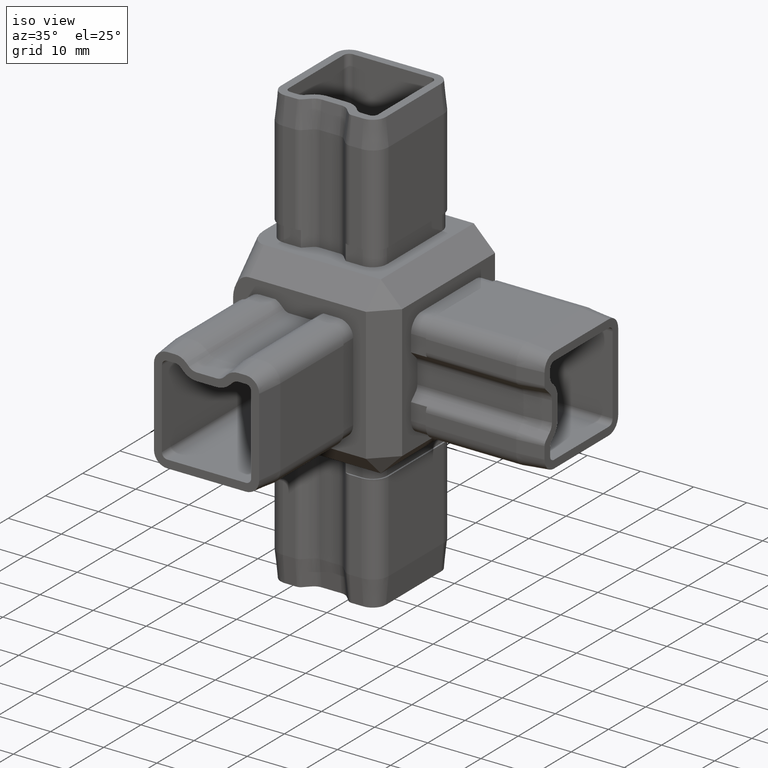
[diagram: clean part render]
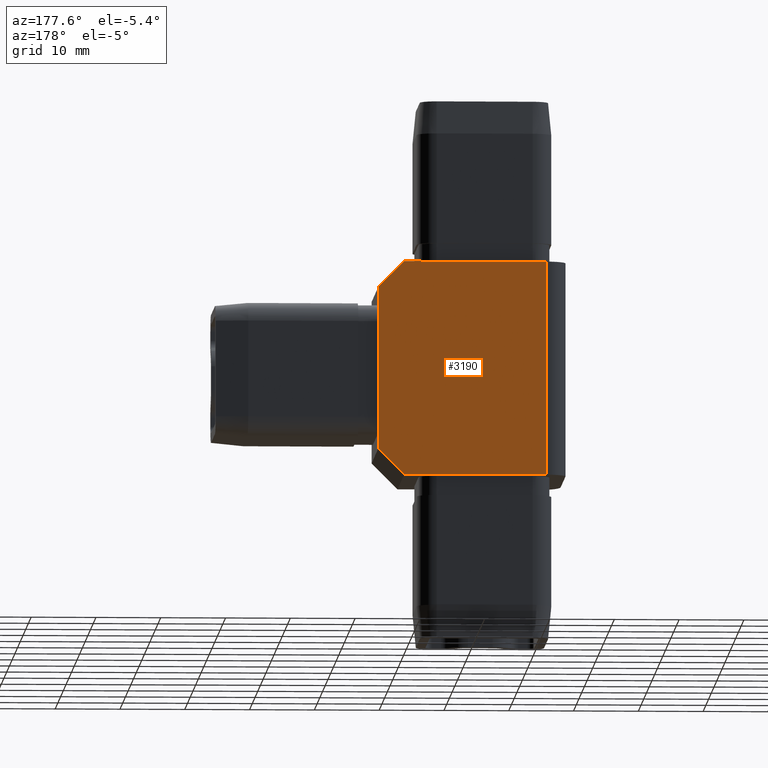
[diagram: tour spotlight — one face highlighted and labeled with its STEP entity id]
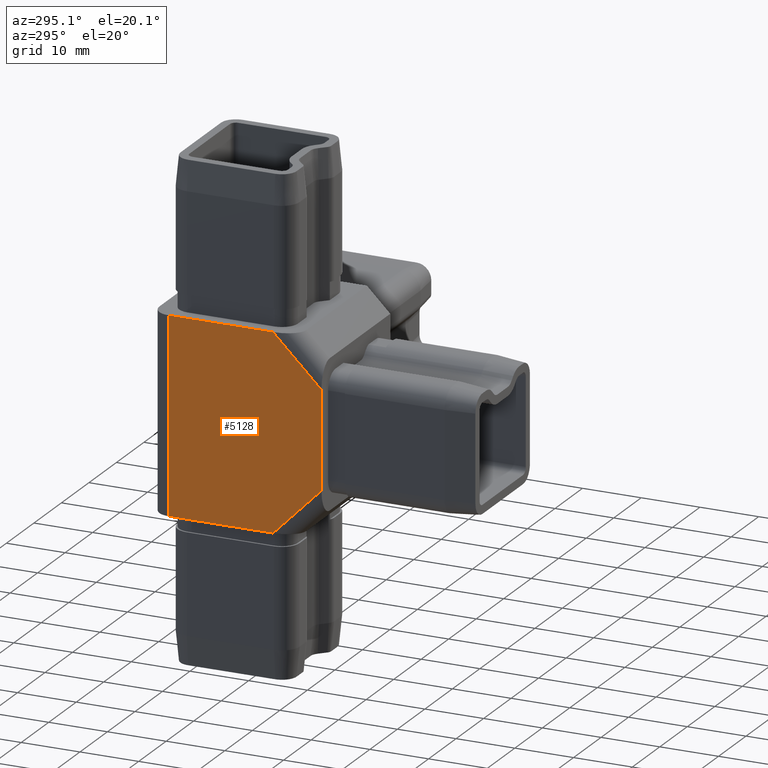
[diagram: tour spotlight — one face highlighted and labeled with its STEP entity id]
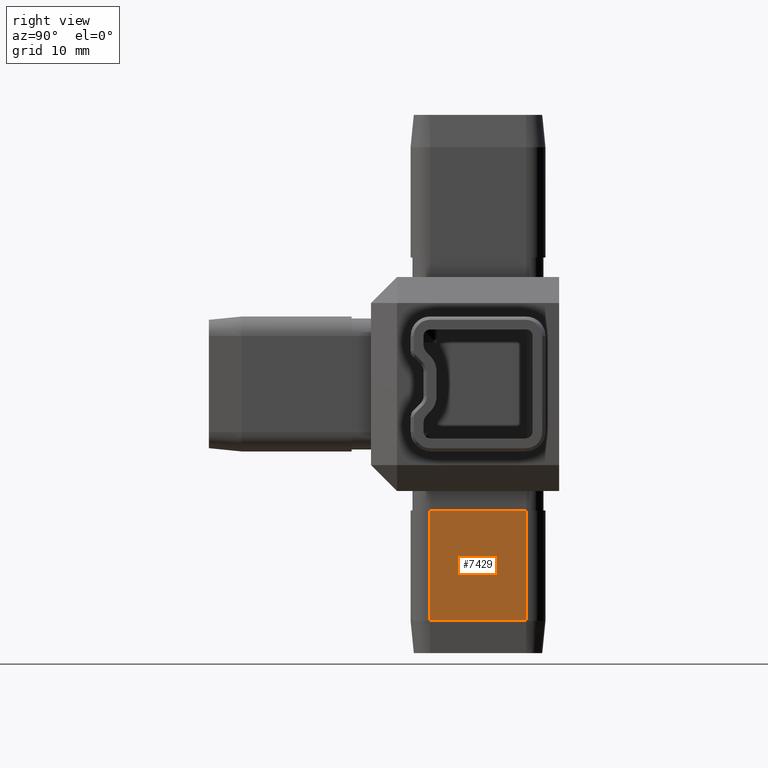
[diagram: tour spotlight — one face highlighted and labeled with its STEP entity id]
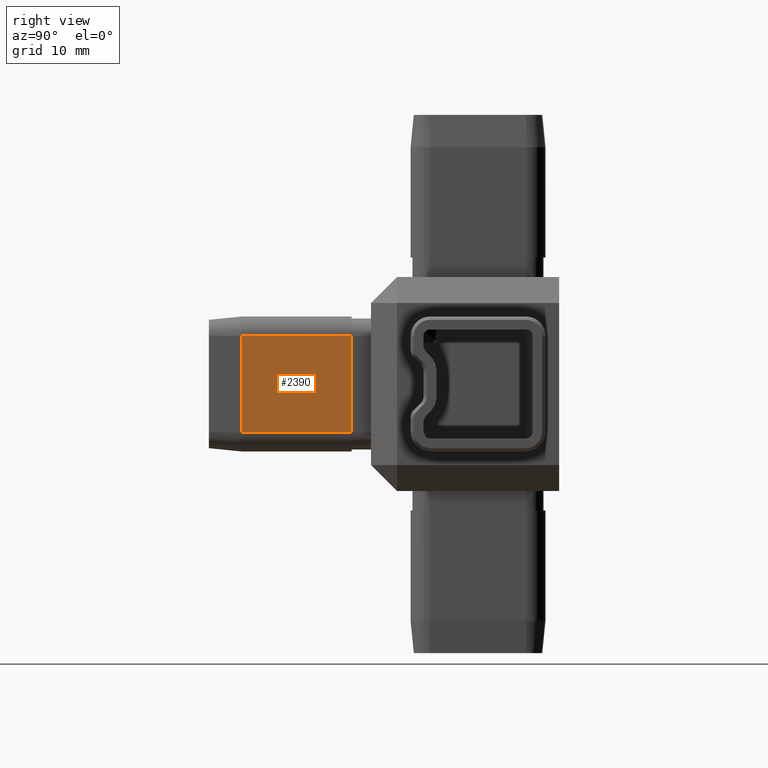
[diagram: tour spotlight — one face highlighted and labeled with its STEP entity id]
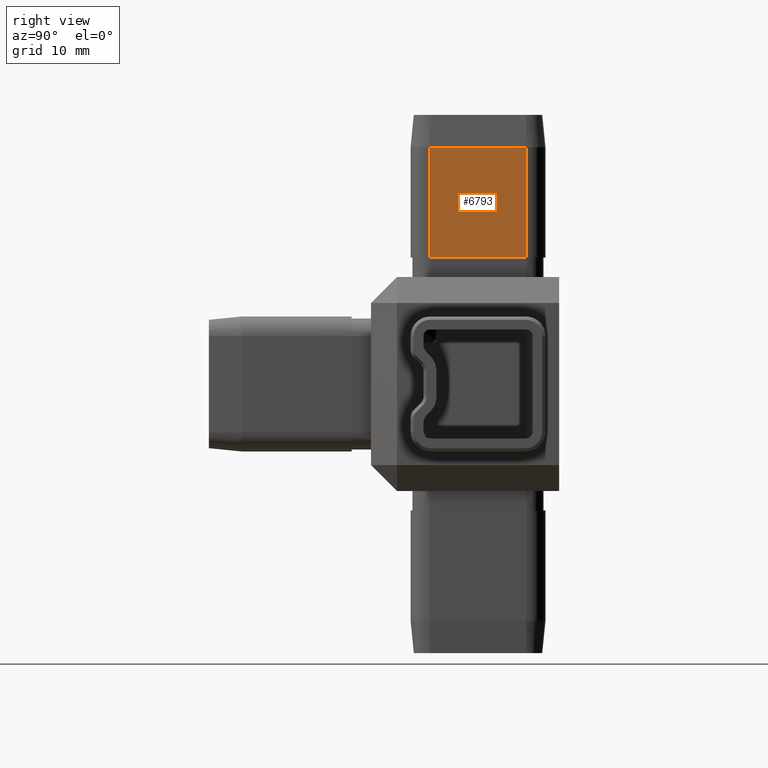
[diagram: tour spotlight — one face highlighted and labeled with its STEP entity id]
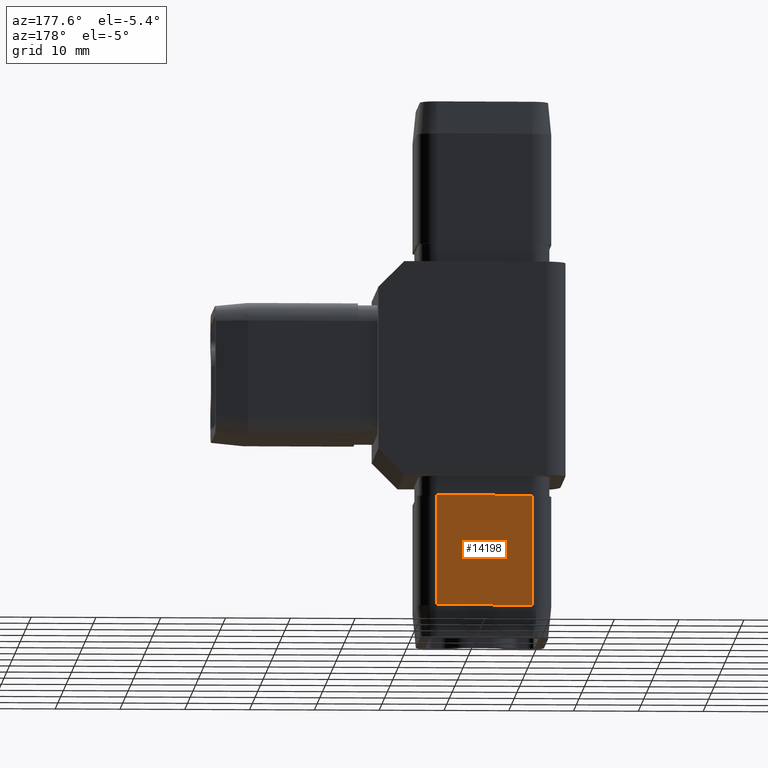
[diagram: tour spotlight — one face highlighted and labeled with its STEP entity id]
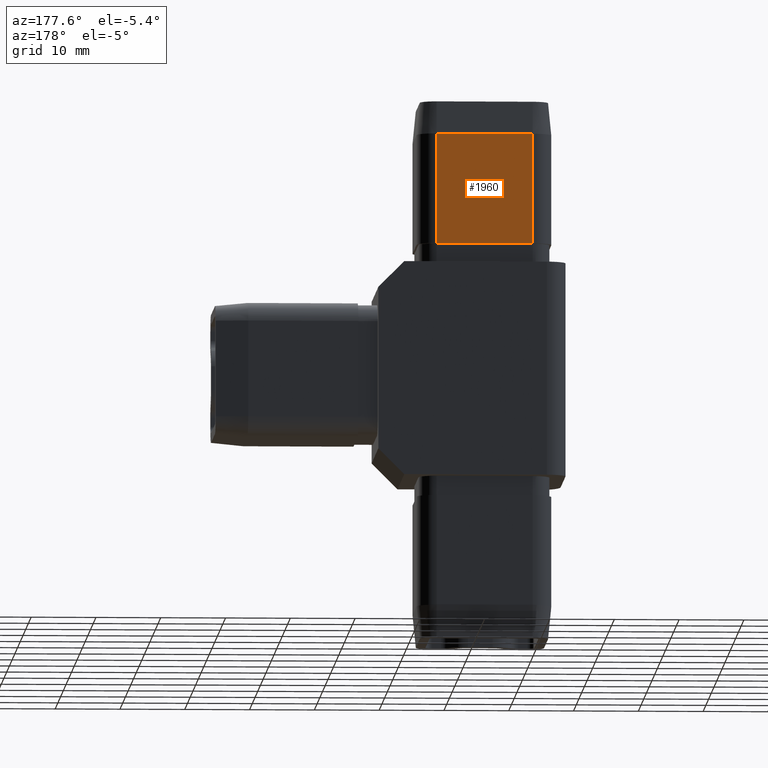
[diagram: tour spotlight — one face highlighted and labeled with its STEP entity id]
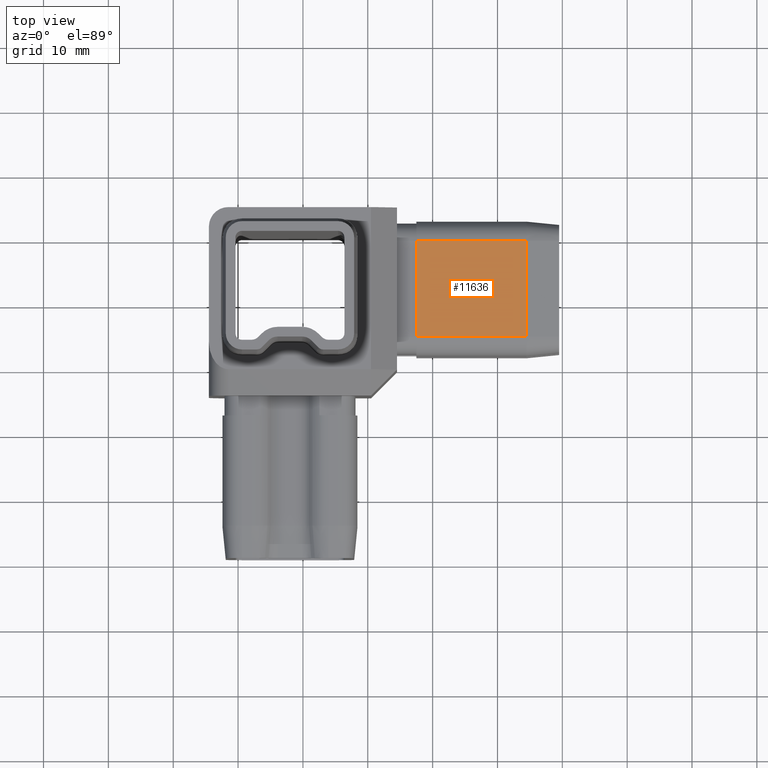
[diagram: tour spotlight — one face highlighted and labeled with its STEP entity id]
A machine part: a face-by-face anatomy tour. The part has 501 B-rep faces; the first image is the clean iso view, then the 8 largest visible faces are spotlighted one at a time (largest first), each with its STEP entity span.

Face 1 — auxiliary view, entity #3190. In plain terms, the highlighted planar face has unit normal (0, -1, 0).
Definition (entity closure, byte-faithful):
#160 = ORIENTED_EDGE ( 'NONE', *, *, #7192, .T. ) ;
#200 = DIRECTION ( 'NONE',  ( -1.000000000000000000, -0.0000000000000000000, -0.0000000000000000000 ) ) ;
#285 = VECTOR ( 'NONE', #200, 1000.000000000000000 ) ;
#605 = CARTESIAN_POINT ( 'NONE',  ( 10.50000000000000500, 14.50000000000000200, 16.50000000000000000 ) ) ;
#868 = ORIENTED_EDGE ( 'NONE', *, *, #3632, .T. ) ;
#1194 = CARTESIAN_POINT ( 'NONE',  ( 10.49999999999997900, 14.50000000000000200, -16.50000000000000000 ) ) ;
#1596 = DIRECTION ( 'NONE',  ( -1.000000000000000000, -0.0000000000000000000, -0.0000000000000000000 ) ) ;
#1776 = CARTESIAN_POINT ( 'NONE',  ( -14.50000000000000500, 14.50000000000000200, 16.50000000000000000 ) ) ;
#1796 = DIRECTION ( 'NONE',  ( -0.7071067811865493500, -0.0000000000000000000, -0.7071067811865456900 ) ) ;
#2071 = DIRECTION ( 'NONE',  ( 0.7071067811865456900, 0.0000000000000000000, -0.7071067811865493500 ) ) ;
#2778 = EDGE_CURVE ( 'NONE', #6378, #6510, #16791, .T. ) ;
#2913 = CARTESIAN_POINT ( 'NONE',  ( 14.49999999999999500, 14.50000000000000200, 16.50000000000000000 ) ) ;
#3111 = LINE ( 'NONE', #13980, #3579 ) ;
#3138 = DIRECTION ( 'NONE',  ( 0.0000000000000000000, -0.0000000000000000000, -1.000000000000000000 ) ) ;
#3190 = ADVANCED_FACE ( 'NONE', ( #17285 ), #6436, .F. ) ;
#3216 = DIRECTION ( 'NONE',  ( 0.0000000000000000000, -1.000000000000000000, 0.0000000000000000000 ) ) ;
#3579 = VECTOR ( 'NONE', #6155, 1000.000000000000000 ) ;
#3632 = EDGE_CURVE ( 'NONE', #9524, #4042, #7613, .T. ) ;
#4042 = VERTEX_POINT ( 'NONE', #1194 ) ;
#4903 = ORIENTED_EDGE ( 'NONE', *, *, #10500, .T. ) ;
#6080 = DIRECTION ( 'NONE',  ( -0.0000000000000000000, -0.0000000000000000000, -1.000000000000000000 ) ) ;
#6155 = DIRECTION ( 'NONE',  ( -0.0000000000000000000, -0.0000000000000000000, 1.000000000000000000 ) ) ;
#6163 = LINE ( 'NONE', #605, #16498 ) ;
#6378 = VERTEX_POINT ( 'NONE', #8794 ) ;
#6436 = PLANE ( 'NONE',  #13334 ) ;
#6510 = VERTEX_POINT ( 'NONE', #17307 ) ;
#7192 = EDGE_CURVE ( 'NONE', #6378, #18020, #6163, .T. ) ;
#7613 = LINE ( 'NONE', #11124, #16283 ) ;
#7768 = CARTESIAN_POINT ( 'NONE',  ( 14.49999999999999500, 14.50000000000000200, 12.49999999999999100 ) ) ;
#8553 = LINE ( 'NONE', #18634, #285 ) ;
#8794 = CARTESIAN_POINT ( 'NONE',  ( 10.50000000000000900, 14.50000000000000200, 16.50000000000000000 ) ) ;
#9368 = CARTESIAN_POINT ( 'NONE',  ( 14.49999999999999500, 14.50000000000000200, -12.50000000000001100 ) ) ;
#9524 = VERTEX_POINT ( 'NONE', #9368 ) ;
#10500 = EDGE_CURVE ( 'NONE', #15370, #6510, #3111, .T. ) ;
#10534 = EDGE_CURVE ( 'NONE', #18020, #9524, #17639, .T. ) ;
#10919 = CARTESIAN_POINT ( 'NONE',  ( -14.50000000000000500, 14.50000000000000200, 16.50000000000000000 ) ) ;
#11124 = CARTESIAN_POINT ( 'NONE',  ( 14.49999999999999500, 14.50000000000000200, -12.50000000000001100 ) ) ;
#11500 = ORIENTED_EDGE ( 'NONE', *, *, #2778, .F. ) ;
#11804 = CARTESIAN_POINT ( 'NONE',  ( -11.50000000000000700, 14.50000000000000200, -16.50000000000000000 ) ) ;
#13334 = AXIS2_PLACEMENT_3D ( 'NONE', #1776, #3216, #3138 ) ;
#13980 = CARTESIAN_POINT ( 'NONE',  ( -11.50000000000000700, 14.50000000000000200, 16.50000000000000000 ) ) ;
#14652 = EDGE_LOOP ( 'NONE', ( #17077, #4903, #11500, #160, #15498, #868 ) ) ;
#15370 = VERTEX_POINT ( 'NONE', #11804 ) ;
#15498 = ORIENTED_EDGE ( 'NONE', *, *, #10534, .T. ) ;
#16283 = VECTOR ( 'NONE', #1796, 1000.000000000000000 ) ;
#16498 = VECTOR ( 'NONE', #2071, 1000.000000000000000 ) ;
#16786 = EDGE_CURVE ( 'NONE', #4042, #15370, #8553, .T. ) ;
#16791 = LINE ( 'NONE', #10919, #17769 ) ;
#17077 = ORIENTED_EDGE ( 'NONE', *, *, #16786, .T. ) ;
#17285 = FACE_OUTER_BOUND ( 'NONE', #14652, .T. ) ;
#17307 = CARTESIAN_POINT ( 'NONE',  ( -11.50000000000000700, 14.50000000000000200, 16.50000000000000000 ) ) ;
#17639 = LINE ( 'NONE', #2913, #19112 ) ;
#17769 = VECTOR ( 'NONE', #1596, 1000.000000000000000 ) ;
#18020 = VERTEX_POINT ( 'NONE', #7768 ) ;
#18634 = CARTESIAN_POINT ( 'NONE',  ( -14.50000000000000500, 14.50000000000000200, -16.50000000000000000 ) ) ;
#19112 = VECTOR ( 'NONE', #6080, 1000.000000000000000 ) ;

Face 2 — auxiliary view, entity #5128. In plain terms, the highlighted planar face has unit normal (1, 0, -0).
Definition (entity closure, byte-faithful):
#67 = CARTESIAN_POINT ( 'NONE',  ( -14.50000000000000200, -12.37867965644036300, -10.37867965644035100 ) ) ;
#997 = EDGE_LOOP ( 'NONE', ( #14913, #8483, #12689, #15506, #10136, #1364 ) ) ;
#1364 = ORIENTED_EDGE ( 'NONE', *, *, #15745, .T. ) ;
#1677 = DIRECTION ( 'NONE',  ( 8.459549885149626700E-017, -0.7071067811865455700, 0.7071067811865494600 ) ) ;
#1724 = CARTESIAN_POINT ( 'NONE',  ( -14.50000000000000200, -14.49999999999999800, 8.257359312880693000 ) ) ;
#1938 = VECTOR ( 'NONE', #14617, 1000.000000000000000 ) ;
#2260 = LINE ( 'NONE', #2945, #6455 ) ;
#2488 = DIRECTION ( 'NONE',  ( 1.000000000000000000, 1.196361017915039500E-016, -0.0000000000000000000 ) ) ;
#2527 = AXIS2_PLACEMENT_3D ( 'NONE', #10371, #2488, #18073 ) ;
#2630 = LINE ( 'NONE', #10540, #15515 ) ;
#2945 = CARTESIAN_POINT ( 'NONE',  ( -14.50000000000000500, 11.50000000000000400, 16.50000000000000000 ) ) ;
#4040 = LINE ( 'NONE', #67, #16906 ) ;
#4091 = VECTOR ( 'NONE', #19396, 1000.000000000000000 ) ;
#5128 = ADVANCED_FACE ( 'NONE', ( #16981 ), #10306, .F. ) ;
#5662 = EDGE_CURVE ( 'NONE', #11782, #14650, #2630, .T. ) ;
#6455 = VECTOR ( 'NONE', #12396, 1000.000000000000000 ) ;
#8066 = VERTEX_POINT ( 'NONE', #16699 ) ;
#8425 = DIRECTION ( 'NONE',  ( -8.459549885149626700E-017, 0.7071067811865455700, 0.7071067811865494600 ) ) ;
#8483 = ORIENTED_EDGE ( 'NONE', *, *, #14031, .T. ) ;
#9016 = EDGE_CURVE ( 'NONE', #8066, #12331, #16715, .T. ) ;
#9038 = CARTESIAN_POINT ( 'NONE',  ( -14.50000000000000200, -14.49999999999999800, -8.257359312880705500 ) ) ;
#9252 = LINE ( 'NONE', #14238, #1938 ) ;
#10136 = ORIENTED_EDGE ( 'NONE', *, *, #5662, .F. ) ;
#10306 = PLANE ( 'NONE',  #2527 ) ;
#10371 = CARTESIAN_POINT ( 'NONE',  ( -14.50000000000000500, 14.50000000000000200, 16.50000000000000000 ) ) ;
#10540 = CARTESIAN_POINT ( 'NONE',  ( -14.50000000000000200, -14.49999999999999800, 16.50000000000000000 ) ) ;
#11120 = EDGE_CURVE ( 'NONE', #12807, #14650, #4040, .T. ) ;
#11349 = CARTESIAN_POINT ( 'NONE',  ( -14.50000000000000400, -6.257359312880728600, 16.50000000000000000 ) ) ;
#11782 = VERTEX_POINT ( 'NONE', #1724 ) ;
#12331 = VERTEX_POINT ( 'NONE', #11349 ) ;
#12352 = VERTEX_POINT ( 'NONE', #17936 ) ;
#12396 = DIRECTION ( 'NONE',  ( 0.0000000000000000000, 0.0000000000000000000, -1.000000000000000000 ) ) ;
#12689 = ORIENTED_EDGE ( 'NONE', *, *, #18936, .T. ) ;
#12807 = VERTEX_POINT ( 'NONE', #13111 ) ;
#12994 = CARTESIAN_POINT ( 'NONE',  ( -14.50000000000000200, -8.378679656440358100, 14.37867965644036700 ) ) ;
#13111 = CARTESIAN_POINT ( 'NONE',  ( -14.50000000000000400, -6.257359312880742800, -16.50000000000000000 ) ) ;
#13637 = DIRECTION ( 'NONE',  ( -0.0000000000000000000, -0.0000000000000000000, -1.000000000000000000 ) ) ;
#14031 = EDGE_CURVE ( 'NONE', #8066, #12352, #2260, .T. ) ;
#14238 = CARTESIAN_POINT ( 'NONE',  ( -14.50000000000000500, 14.50000000000000200, -16.50000000000000000 ) ) ;
#14617 = DIRECTION ( 'NONE',  ( 1.196361017915039500E-016, -1.000000000000000000, 0.0000000000000000000 ) ) ;
#14650 = VERTEX_POINT ( 'NONE', #9038 ) ;
#14724 = CARTESIAN_POINT ( 'NONE',  ( -14.50000000000000500, 14.50000000000000200, 16.50000000000000000 ) ) ;
#14913 = ORIENTED_EDGE ( 'NONE', *, *, #9016, .F. ) ;
#15506 = ORIENTED_EDGE ( 'NONE', *, *, #11120, .T. ) ;
#15515 = VECTOR ( 'NONE', #13637, 1000.000000000000000 ) ;
#15745 = EDGE_CURVE ( 'NONE', #11782, #12331, #18225, .T. ) ;
#16699 = CARTESIAN_POINT ( 'NONE',  ( -14.50000000000000500, 11.50000000000000400, 16.50000000000000000 ) ) ;
#16715 = LINE ( 'NONE', #14724, #4091 ) ;
#16906 = VECTOR ( 'NONE', #1677, 1000.000000000000200 ) ;
#16981 = FACE_OUTER_BOUND ( 'NONE', #997, .T. ) ;
#17032 = VECTOR ( 'NONE', #8425, 1000.000000000000200 ) ;
#17936 = CARTESIAN_POINT ( 'NONE',  ( -14.50000000000000500, 11.50000000000000400, -16.50000000000000000 ) ) ;
#18073 = DIRECTION ( 'NONE',  ( -1.196361017915039500E-016, 1.000000000000000000, 0.0000000000000000000 ) ) ;
#18225 = LINE ( 'NONE', #12994, #17032 ) ;
#18936 = EDGE_CURVE ( 'NONE', #12352, #12807, #9252, .T. ) ;
#19396 = DIRECTION ( 'NONE',  ( 1.196361017915039500E-016, -1.000000000000000000, 0.0000000000000000000 ) ) ;

Face 3 — right view, entity #7429. In plain terms, the highlighted planar face has unit normal (1, -0, 0).
Definition (entity closure, byte-faithful):
#9 = VERTEX_POINT ( 'NONE', #15361 ) ;
#125 = EDGE_CURVE ( 'NONE', #8343, #8230, #2973, .T. ) ;
#184 = AXIS2_PLACEMENT_3D ( 'NONE', #19506, #2555, #5713 ) ;
#942 = CARTESIAN_POINT ( 'NONE',  ( 8.400000000000007500, -5.399999999999998600, -19.50000000000000000 ) ) ;
#1403 = ORIENTED_EDGE ( 'NONE', *, *, #11835, .T. ) ;
#2035 = CARTESIAN_POINT ( 'NONE',  ( 8.400000000000007500, 9.400000000000002100, -19.50000000000000000 ) ) ;
#2480 = ORIENTED_EDGE ( 'NONE', *, *, #125, .F. ) ;
#2555 = DIRECTION ( 'NONE',  ( 1.000000000000000000, -1.172110456741085800E-016, 0.0000000000000000000 ) ) ;
#2973 = LINE ( 'NONE', #4302, #18980 ) ;
#4302 = CARTESIAN_POINT ( 'NONE',  ( 8.400000000000005700, -5.399999999999998600, -41.50000000000000000 ) ) ;
#4582 = CARTESIAN_POINT ( 'NONE',  ( 8.400000000000007500, 9.400000000000002100, -36.50000000000001400 ) ) ;
#5450 = PLANE ( 'NONE',  #184 ) ;
#5713 = DIRECTION ( 'NONE',  ( 1.172110456741085800E-016, 1.000000000000000000, 0.0000000000000000000 ) ) ;
#5732 = EDGE_CURVE ( 'NONE', #8704, #8343, #15767, .T. ) ;
#6039 = DIRECTION ( 'NONE',  ( -0.0000000000000000000, -0.0000000000000000000, 1.000000000000000000 ) ) ;
#6259 = CARTESIAN_POINT ( 'NONE',  ( 8.400000000000007500, 9.400000000000002100, -36.50000000000001400 ) ) ;
#6438 = DIRECTION ( 'NONE',  ( 0.0000000000000000000, -1.000000000000000000, 0.0000000000000000000 ) ) ;
#7044 = DIRECTION ( 'NONE',  ( -0.0000000000000000000, -0.0000000000000000000, 1.000000000000000000 ) ) ;
#7429 = ADVANCED_FACE ( 'NONE', ( #8577 ), #5450, .T. ) ;
#7974 = VECTOR ( 'NONE', #8335, 1000.000000000000000 ) ;
#8230 = VERTEX_POINT ( 'NONE', #942 ) ;
#8247 = ORIENTED_EDGE ( 'NONE', *, *, #8955, .T. ) ;
#8335 = DIRECTION ( 'NONE',  ( 0.0000000000000000000, -1.000000000000000000, 0.0000000000000000000 ) ) ;
#8343 = VERTEX_POINT ( 'NONE', #13742 ) ;
#8577 = FACE_OUTER_BOUND ( 'NONE', #13511, .T. ) ;
#8600 = CARTESIAN_POINT ( 'NONE',  ( 8.400000000000007500, 9.400000000000002100, -41.50000000000000000 ) ) ;
#8704 = VERTEX_POINT ( 'NONE', #6259 ) ;
#8955 = EDGE_CURVE ( 'NONE', #8704, #9, #15035, .T. ) ;
#10684 = VECTOR ( 'NONE', #6438, 1000.000000000000000 ) ;
#11288 = ORIENTED_EDGE ( 'NONE', *, *, #5732, .F. ) ;
#11835 = EDGE_CURVE ( 'NONE', #9, #8230, #18606, .T. ) ;
#13511 = EDGE_LOOP ( 'NONE', ( #2480, #11288, #8247, #1403 ) ) ;
#13742 = CARTESIAN_POINT ( 'NONE',  ( 8.400000000000007500, -5.399999999999998600, -36.50000000000001400 ) ) ;
#14556 = VECTOR ( 'NONE', #7044, 1000.000000000000000 ) ;
#15035 = LINE ( 'NONE', #8600, #14556 ) ;
#15361 = CARTESIAN_POINT ( 'NONE',  ( 8.400000000000007500, 9.400000000000002100, -19.50000000000000000 ) ) ;
#15767 = LINE ( 'NONE', #4582, #10684 ) ;
#18606 = LINE ( 'NONE', #2035, #7974 ) ;
#18980 = VECTOR ( 'NONE', #6039, 1000.000000000000000 ) ;
#19506 = CARTESIAN_POINT ( 'NONE',  ( 8.400000000000007500, 9.400000000000002100, -41.50000000000000000 ) ) ;

Face 4 — right view, entity #2390. In plain terms, the highlighted planar face has unit normal (-1, 0, -0).
Definition (entity closure, byte-faithful):
#64 = PLANE ( 'NONE',  #12461 ) ;
#264 = CARTESIAN_POINT ( 'NONE',  ( 8.400000000000009200, -39.50000000000000000, -7.400000000000018100 ) ) ;
#470 = VECTOR ( 'NONE', #13746, 1000.000000000000000 ) ;
#789 = CARTESIAN_POINT ( 'NONE',  ( 8.400000000000003900, -17.50000000000000000, -7.400000000000021700 ) ) ;
#1242 = VECTOR ( 'NONE', #2430, 1000.000000000000000 ) ;
#1608 = DIRECTION ( 'NONE',  ( -1.000000000000000000, 0.0000000000000000000, -2.344220913482170200E-016 ) ) ;
#2194 = CARTESIAN_POINT ( 'NONE',  ( 8.400000000000005700, -39.50000000000000000, 7.399999999999993200 ) ) ;
#2361 = CARTESIAN_POINT ( 'NONE',  ( 8.400000000000003900, -17.50000000000000000, 7.399999999999988800 ) ) ;
#2390 = ADVANCED_FACE ( 'NONE', ( #12711 ), #64, .F. ) ;
#2430 = DIRECTION ( 'NONE',  ( 0.0000000000000000000, 0.0000000000000000000, -1.000000000000000000 ) ) ;
#2538 = ORIENTED_EDGE ( 'NONE', *, *, #12553, .T. ) ;
#2885 = ORIENTED_EDGE ( 'NONE', *, *, #11329, .F. ) ;
#3460 = VERTEX_POINT ( 'NONE', #789 ) ;
#4307 = ORIENTED_EDGE ( 'NONE', *, *, #7947, .F. ) ;
#5594 = CARTESIAN_POINT ( 'NONE',  ( 8.400000000000003900, -17.50000000000000000, 7.399999999999988800 ) ) ;
#5635 = LINE ( 'NONE', #5594, #1242 ) ;
#7337 = DIRECTION ( 'NONE',  ( 1.172110456741085100E-016, 0.0000000000000000000, -1.000000000000000000 ) ) ;
#7947 = EDGE_CURVE ( 'NONE', #15273, #3460, #5635, .T. ) ;
#9999 = CARTESIAN_POINT ( 'NONE',  ( 8.400000000000005700, -34.50000000000000000, -7.400000000000021700 ) ) ;
#10016 = DIRECTION ( 'NONE',  ( -0.0000000000000000000, 1.000000000000000000, -0.0000000000000000000 ) ) ;
#10282 = EDGE_CURVE ( 'NONE', #17273, #3460, #10392, .T. ) ;
#10392 = LINE ( 'NONE', #15243, #470 ) ;
#10413 = ORIENTED_EDGE ( 'NONE', *, *, #10282, .T. ) ;
#10894 = VECTOR ( 'NONE', #10016, 1000.000000000000000 ) ;
#11329 = EDGE_CURVE ( 'NONE', #14727, #15273, #20060, .T. ) ;
#12369 = EDGE_LOOP ( 'NONE', ( #2538, #10413, #4307, #2885 ) ) ;
#12461 = AXIS2_PLACEMENT_3D ( 'NONE', #264, #1608, #17128 ) ;
#12553 = EDGE_CURVE ( 'NONE', #14727, #17273, #18817, .T. ) ;
#12711 = FACE_OUTER_BOUND ( 'NONE', #12369, .T. ) ;
#13746 = DIRECTION ( 'NONE',  ( -0.0000000000000000000, 1.000000000000000000, -0.0000000000000000000 ) ) ;
#14727 = VERTEX_POINT ( 'NONE', #17265 ) ;
#15243 = CARTESIAN_POINT ( 'NONE',  ( 8.400000000000007500, -39.50000000000000000, -7.400000000000018100 ) ) ;
#15273 = VERTEX_POINT ( 'NONE', #2361 ) ;
#17128 = DIRECTION ( 'NONE',  ( -2.344220913482170200E-016, 0.0000000000000000000, 1.000000000000000000 ) ) ;
#17265 = CARTESIAN_POINT ( 'NONE',  ( 8.400000000000003900, -34.50000000000000000, 7.399999999999988800 ) ) ;
#17273 = VERTEX_POINT ( 'NONE', #9999 ) ;
#18124 = CARTESIAN_POINT ( 'NONE',  ( 8.400000000000003900, -34.50000000000000000, 7.399999999999988800 ) ) ;
#18817 = LINE ( 'NONE', #18124, #20022 ) ;
#20022 = VECTOR ( 'NONE', #7337, 1000.000000000000000 ) ;
#20060 = LINE ( 'NONE', #2194, #10894 ) ;

Face 5 — right view, entity #6793. In plain terms, the highlighted planar face has unit normal (-1, 0, 0).
Definition (entity closure, byte-faithful):
#58 = CARTESIAN_POINT ( 'NONE',  ( 8.400000000000007500, 9.400000000000002100, 41.50000000000000000 ) ) ;
#454 = CARTESIAN_POINT ( 'NONE',  ( 8.400000000000005700, -5.399999999999998600, 41.50000000000000000 ) ) ;
#1601 = DIRECTION ( 'NONE',  ( -1.000000000000000000, 1.172110456741085800E-016, 0.0000000000000000000 ) ) ;
#2435 = EDGE_LOOP ( 'NONE', ( #14480, #11627, #11916, #17658 ) ) ;
#3179 = VERTEX_POINT ( 'NONE', #12642 ) ;
#3978 = EDGE_CURVE ( 'NONE', #3179, #14499, #12430, .T. ) ;
#4484 = CARTESIAN_POINT ( 'NONE',  ( 8.400000000000007500, -5.399999999999998600, 19.50000000000000000 ) ) ;
#5139 = DIRECTION ( 'NONE',  ( 0.0000000000000000000, -1.000000000000000000, 0.0000000000000000000 ) ) ;
#5278 = VECTOR ( 'NONE', #5139, 1000.000000000000000 ) ;
#5895 = VECTOR ( 'NONE', #10433, 1000.000000000000000 ) ;
#6280 = LINE ( 'NONE', #6383, #5278 ) ;
#6362 = VERTEX_POINT ( 'NONE', #19528 ) ;
#6383 = CARTESIAN_POINT ( 'NONE',  ( 8.400000000000007500, 9.400000000000002100, 19.50000000000000000 ) ) ;
#6664 = VECTOR ( 'NONE', #17576, 1000.000000000000000 ) ;
#6793 = ADVANCED_FACE ( 'NONE', ( #9792 ), #10929, .F. ) ;
#7408 = LINE ( 'NONE', #15041, #16315 ) ;
#7729 = VERTEX_POINT ( 'NONE', #4484 ) ;
#9792 = FACE_OUTER_BOUND ( 'NONE', #2435, .T. ) ;
#10433 = DIRECTION ( 'NONE',  ( -0.0000000000000000000, -0.0000000000000000000, -1.000000000000000000 ) ) ;
#10773 = LINE ( 'NONE', #454, #6664 ) ;
#10929 = PLANE ( 'NONE',  #11265 ) ;
#11265 = AXIS2_PLACEMENT_3D ( 'NONE', #58, #1601, #18567 ) ;
#11627 = ORIENTED_EDGE ( 'NONE', *, *, #13628, .T. ) ;
#11821 = EDGE_CURVE ( 'NONE', #14499, #7729, #6280, .T. ) ;
#11916 = ORIENTED_EDGE ( 'NONE', *, *, #14888, .T. ) ;
#12159 = DIRECTION ( 'NONE',  ( 0.0000000000000000000, -1.000000000000000000, 0.0000000000000000000 ) ) ;
#12430 = LINE ( 'NONE', #17094, #5895 ) ;
#12642 = CARTESIAN_POINT ( 'NONE',  ( 8.400000000000007500, 9.400000000000002100, 36.50000000000001400 ) ) ;
#13628 = EDGE_CURVE ( 'NONE', #3179, #6362, #7408, .T. ) ;
#14480 = ORIENTED_EDGE ( 'NONE', *, *, #3978, .F. ) ;
#14499 = VERTEX_POINT ( 'NONE', #18658 ) ;
#14888 = EDGE_CURVE ( 'NONE', #6362, #7729, #10773, .T. ) ;
#15041 = CARTESIAN_POINT ( 'NONE',  ( 8.400000000000007500, 9.400000000000002100, 36.50000000000001400 ) ) ;
#16315 = VECTOR ( 'NONE', #12159, 1000.000000000000000 ) ;
#17094 = CARTESIAN_POINT ( 'NONE',  ( 8.400000000000007500, 9.400000000000002100, 41.50000000000000000 ) ) ;
#17576 = DIRECTION ( 'NONE',  ( -0.0000000000000000000, -0.0000000000000000000, -1.000000000000000000 ) ) ;
#17658 = ORIENTED_EDGE ( 'NONE', *, *, #11821, .F. ) ;
#18567 = DIRECTION ( 'NONE',  ( -1.172110456741085800E-016, -1.000000000000000000, 0.0000000000000000000 ) ) ;
#18658 = CARTESIAN_POINT ( 'NONE',  ( 8.400000000000007500, 9.400000000000002100, 19.50000000000000000 ) ) ;
#19528 = CARTESIAN_POINT ( 'NONE',  ( 8.400000000000005700, -5.399999999999998600, 36.50000000000002100 ) ) ;

Face 6 — auxiliary view, entity #14198. In plain terms, the highlighted planar face has unit normal (0, 1, 0).
Definition (entity closure, byte-faithful):
#132 = CARTESIAN_POINT ( 'NONE',  ( -9.400000000000002100, 12.40000000000000000, -19.50000000000000000 ) ) ;
#403 = LINE ( 'NONE', #11729, #5735 ) ;
#779 = LINE ( 'NONE', #19141, #2474 ) ;
#1639 = ORIENTED_EDGE ( 'NONE', *, *, #17970, .T. ) ;
#2412 = EDGE_CURVE ( 'NONE', #9913, #6215, #11044, .T. ) ;
#2474 = VECTOR ( 'NONE', #13169, 1000.000000000000000 ) ;
#2948 = EDGE_CURVE ( 'NONE', #11897, #8241, #779, .T. ) ;
#2958 = EDGE_CURVE ( 'NONE', #15966, #12976, #9790, .T. ) ;
#3043 = ORIENTED_EDGE ( 'NONE', *, *, #2948, .F. ) ;
#3294 = CARTESIAN_POINT ( 'NONE',  ( 5.400000000000009200, 12.40000000000000200, -19.50000000000000000 ) ) ;
#3320 = EDGE_LOOP ( 'NONE', ( #7055, #3043, #1639, #13661, #6867, #19467 ) ) ;
#3622 = VECTOR ( 'NONE', #18274, 1000.000000000000000 ) ;
#4461 = AXIS2_PLACEMENT_3D ( 'NONE', #16663, #13022, #7371 ) ;
#5735 = VECTOR ( 'NONE', #13326, 1000.000000000000000 ) ;
#5755 = CARTESIAN_POINT ( 'NONE',  ( 3.469446951953614200E-015, 12.40000000000000200, -36.50000000000001400 ) ) ;
#6215 = VERTEX_POINT ( 'NONE', #20030 ) ;
#6524 = DIRECTION ( 'NONE',  ( 1.000000000000000000, 0.0000000000000000000, 0.0000000000000000000 ) ) ;
#6867 = ORIENTED_EDGE ( 'NONE', *, *, #17114, .F. ) ;
#6913 = VECTOR ( 'NONE', #6524, 1000.000000000000000 ) ;
#7055 = ORIENTED_EDGE ( 'NONE', *, *, #12432, .T. ) ;
#7371 = DIRECTION ( 'NONE',  ( 0.0000000000000000000, -0.0000000000000000000, 1.000000000000000000 ) ) ;
#8241 = VERTEX_POINT ( 'NONE', #5755 ) ;
#8971 = CARTESIAN_POINT ( 'NONE',  ( -9.400000000000005700, 12.40000000000000200, -41.50000000000000000 ) ) ;
#9082 = CARTESIAN_POINT ( 'NONE',  ( -9.400000000000002100, 12.40000000000000000, -19.50000000000000000 ) ) ;
#9736 = CARTESIAN_POINT ( 'NONE',  ( -9.400000000000002100, 12.40000000000000200, -36.50000000000001400 ) ) ;
#9790 = LINE ( 'NONE', #10005, #15096 ) ;
#9913 = VERTEX_POINT ( 'NONE', #9082 ) ;
#10005 = CARTESIAN_POINT ( 'NONE',  ( 5.400000000000009200, 12.40000000000000200, -41.50000000000000000 ) ) ;
#11044 = LINE ( 'NONE', #132, #6913 ) ;
#11729 = CARTESIAN_POINT ( 'NONE',  ( 5.400000000000009200, 12.40000000000000200, -36.50000000000001400 ) ) ;
#11897 = VERTEX_POINT ( 'NONE', #9736 ) ;
#12018 = PLANE ( 'NONE',  #4461 ) ;
#12432 = EDGE_CURVE ( 'NONE', #15966, #8241, #403, .T. ) ;
#12976 = VERTEX_POINT ( 'NONE', #15617 ) ;
#13022 = DIRECTION ( 'NONE',  ( 0.0000000000000000000, 1.000000000000000000, 0.0000000000000000000 ) ) ;
#13169 = DIRECTION ( 'NONE',  ( 1.000000000000000000, 0.0000000000000000000, 0.0000000000000000000 ) ) ;
#13326 = DIRECTION ( 'NONE',  ( -1.000000000000000000, -0.0000000000000000000, -0.0000000000000000000 ) ) ;
#13661 = ORIENTED_EDGE ( 'NONE', *, *, #2412, .T. ) ;
#14139 = DIRECTION ( 'NONE',  ( -1.000000000000000000, -0.0000000000000000000, -0.0000000000000000000 ) ) ;
#14198 = ADVANCED_FACE ( 'NONE', ( #19240 ), #12018, .T. ) ;
#14529 = DIRECTION ( 'NONE',  ( -0.0000000000000000000, -0.0000000000000000000, 1.000000000000000000 ) ) ;
#15096 = VECTOR ( 'NONE', #14529, 1000.000000000000000 ) ;
#15208 = CARTESIAN_POINT ( 'NONE',  ( 5.400000000000009200, 12.40000000000000200, -36.50000000000001400 ) ) ;
#15617 = CARTESIAN_POINT ( 'NONE',  ( 5.400000000000009200, 12.40000000000000200, -19.50000000000000000 ) ) ;
#15966 = VERTEX_POINT ( 'NONE', #15208 ) ;
#16008 = LINE ( 'NONE', #3294, #19390 ) ;
#16663 = CARTESIAN_POINT ( 'NONE',  ( -9.400000000000005700, 12.40000000000000200, -41.50000000000000000 ) ) ;
#17114 = EDGE_CURVE ( 'NONE', #12976, #6215, #16008, .T. ) ;
#17480 = LINE ( 'NONE', #8971, #3622 ) ;
#17970 = EDGE_CURVE ( 'NONE', #11897, #9913, #17480, .T. ) ;
#18274 = DIRECTION ( 'NONE',  ( -0.0000000000000000000, -0.0000000000000000000, 1.000000000000000000 ) ) ;
#19141 = CARTESIAN_POINT ( 'NONE',  ( -9.400000000000002100, 12.40000000000000200, -36.50000000000001400 ) ) ;
#19240 = FACE_OUTER_BOUND ( 'NONE', #3320, .T. ) ;
#19390 = VECTOR ( 'NONE', #14139, 1000.000000000000000 ) ;
#19467 = ORIENTED_EDGE ( 'NONE', *, *, #2958, .F. ) ;
#20030 = CARTESIAN_POINT ( 'NONE',  ( 3.469446951953614200E-015, 12.40000000000000000, -19.50000000000000000 ) ) ;

Face 7 — auxiliary view, entity #1960. In plain terms, the highlighted planar face has unit normal (0, -1, 0).
Definition (entity closure, byte-faithful):
#80 = VECTOR ( 'NONE', #19777, 1000.000000000000000 ) ;
#731 = CARTESIAN_POINT ( 'NONE',  ( -9.400000000000002100, 12.40000000000000200, 36.50000000000001400 ) ) ;
#740 = VECTOR ( 'NONE', #16850, 1000.000000000000000 ) ;
#1010 = ORIENTED_EDGE ( 'NONE', *, *, #11877, .T. ) ;
#1118 = CARTESIAN_POINT ( 'NONE',  ( -9.400000000000002100, 12.40000000000000200, 36.50000000000001400 ) ) ;
#1220 = LINE ( 'NONE', #7416, #740 ) ;
#1490 = LINE ( 'NONE', #1118, #9249 ) ;
#1511 = AXIS2_PLACEMENT_3D ( 'NONE', #3583, #11546, #15981 ) ;
#1843 = CARTESIAN_POINT ( 'NONE',  ( 5.400000000000009200, 12.40000000000000200, 41.50000000000000000 ) ) ;
#1960 = ADVANCED_FACE ( 'NONE', ( #14169 ), #6817, .F. ) ;
#2109 = VERTEX_POINT ( 'NONE', #18396 ) ;
#3583 = CARTESIAN_POINT ( 'NONE',  ( -9.400000000000005700, 12.40000000000000200, 41.50000000000000000 ) ) ;
#3829 = LINE ( 'NONE', #12191, #13795 ) ;
#3878 = LINE ( 'NONE', #10138, #4680 ) ;
#4680 = VECTOR ( 'NONE', #14803, 1000.000000000000000 ) ;
#5468 = EDGE_LOOP ( 'NONE', ( #17340, #18331, #8651, #1010, #7892, #12840 ) ) ;
#5563 = CARTESIAN_POINT ( 'NONE',  ( -9.400000000000002100, 12.40000000000000000, 19.50000000000000000 ) ) ;
#5768 = DIRECTION ( 'NONE',  ( 1.000000000000000000, 0.0000000000000000000, 0.0000000000000000000 ) ) ;
#5797 = CARTESIAN_POINT ( 'NONE',  ( 3.469446951953614200E-015, 12.40000000000000000, 19.50000000000000000 ) ) ;
#6552 = EDGE_CURVE ( 'NONE', #12443, #8025, #16522, .T. ) ;
#6599 = CARTESIAN_POINT ( 'NONE',  ( 5.400000000000009200, 12.40000000000000200, 19.50000000000000000 ) ) ;
#6817 = PLANE ( 'NONE',  #1511 ) ;
#7416 = CARTESIAN_POINT ( 'NONE',  ( 5.400000000000009200, 12.40000000000000200, 36.50000000000001400 ) ) ;
#7892 = ORIENTED_EDGE ( 'NONE', *, *, #19606, .T. ) ;
#8025 = VERTEX_POINT ( 'NONE', #5797 ) ;
#8215 = EDGE_CURVE ( 'NONE', #17875, #12443, #3878, .T. ) ;
#8387 = EDGE_CURVE ( 'NONE', #8756, #2109, #1220, .T. ) ;
#8651 = ORIENTED_EDGE ( 'NONE', *, *, #8387, .F. ) ;
#8756 = VERTEX_POINT ( 'NONE', #10999 ) ;
#8915 = CARTESIAN_POINT ( 'NONE',  ( -9.400000000000002100, 12.40000000000000000, 19.50000000000000000 ) ) ;
#9249 = VECTOR ( 'NONE', #5768, 1000.000000000000000 ) ;
#10138 = CARTESIAN_POINT ( 'NONE',  ( -9.400000000000005700, 12.40000000000000200, 41.50000000000000000 ) ) ;
#10999 = CARTESIAN_POINT ( 'NONE',  ( 5.400000000000009200, 12.40000000000000200, 36.50000000000001400 ) ) ;
#11546 = DIRECTION ( 'NONE',  ( 0.0000000000000000000, -1.000000000000000000, 0.0000000000000000000 ) ) ;
#11877 = EDGE_CURVE ( 'NONE', #8756, #15759, #17138, .T. ) ;
#12191 = CARTESIAN_POINT ( 'NONE',  ( 5.400000000000009200, 12.40000000000000200, 19.50000000000000000 ) ) ;
#12261 = DIRECTION ( 'NONE',  ( -1.000000000000000000, -0.0000000000000000000, -0.0000000000000000000 ) ) ;
#12443 = VERTEX_POINT ( 'NONE', #5563 ) ;
#12656 = DIRECTION ( 'NONE',  ( -0.0000000000000000000, -0.0000000000000000000, -1.000000000000000000 ) ) ;
#12840 = ORIENTED_EDGE ( 'NONE', *, *, #6552, .F. ) ;
#13795 = VECTOR ( 'NONE', #12261, 1000.000000000000000 ) ;
#13994 = VECTOR ( 'NONE', #12656, 1000.000000000000000 ) ;
#14169 = FACE_OUTER_BOUND ( 'NONE', #5468, .T. ) ;
#14803 = DIRECTION ( 'NONE',  ( -0.0000000000000000000, -0.0000000000000000000, -1.000000000000000000 ) ) ;
#15759 = VERTEX_POINT ( 'NONE', #6599 ) ;
#15981 = DIRECTION ( 'NONE',  ( 0.0000000000000000000, -0.0000000000000000000, -1.000000000000000000 ) ) ;
#16522 = LINE ( 'NONE', #8915, #80 ) ;
#16850 = DIRECTION ( 'NONE',  ( -1.000000000000000000, -0.0000000000000000000, -0.0000000000000000000 ) ) ;
#17138 = LINE ( 'NONE', #1843, #13994 ) ;
#17340 = ORIENTED_EDGE ( 'NONE', *, *, #8215, .F. ) ;
#17875 = VERTEX_POINT ( 'NONE', #731 ) ;
#17895 = EDGE_CURVE ( 'NONE', #17875, #2109, #1490, .T. ) ;
#18331 = ORIENTED_EDGE ( 'NONE', *, *, #17895, .T. ) ;
#18396 = CARTESIAN_POINT ( 'NONE',  ( 3.469446951953614200E-015, 12.40000000000000200, 36.50000000000001400 ) ) ;
#19606 = EDGE_CURVE ( 'NONE', #15759, #8025, #3829, .T. ) ;
#19777 = DIRECTION ( 'NONE',  ( 1.000000000000000000, 0.0000000000000000000, 0.0000000000000000000 ) ) ;

Face 8 — top view, entity #11636. In plain terms, the highlighted planar face has unit normal (0, -0, 1).
Definition (entity closure, byte-faithful):
#7 = EDGE_CURVE ( 'NONE', #8018, #15959, #10758, .T. ) ;
#547 = ORIENTED_EDGE ( 'NONE', *, *, #17551, .T. ) ;
#873 = ORIENTED_EDGE ( 'NONE', *, *, #7, .T. ) ;
#1239 = CARTESIAN_POINT ( 'NONE',  ( 39.50000000000000000, 9.400000000000005700, 10.39999999999999700 ) ) ;
#1410 = EDGE_LOOP ( 'NONE', ( #15006, #19518, #873, #547 ) ) ;
#2639 = LINE ( 'NONE', #13065, #14311 ) ;
#3038 = DIRECTION ( 'NONE',  ( 0.0000000000000000000, -1.000000000000000000, -1.172110456741085800E-016 ) ) ;
#3763 = DIRECTION ( 'NONE',  ( -1.000000000000000000, -1.196361017915039700E-016, 4.440892098500625200E-016 ) ) ;
#4160 = CARTESIAN_POINT ( 'NONE',  ( 39.50000000000000000, 9.400000000000005700, 10.39999999999999700 ) ) ;
#4164 = VECTOR ( 'NONE', #16414, 1000.000000000000000 ) ;
#6129 = CARTESIAN_POINT ( 'NONE',  ( 34.50000000000000700, 9.400000000000002100, 10.39999999999999900 ) ) ;
#6153 = DIRECTION ( 'NONE',  ( 2.344220913482171700E-016, -1.000000000000000000, -1.172110456741085800E-016 ) ) ;
#6589 = AXIS2_PLACEMENT_3D ( 'NONE', #1239, #13792, #18186 ) ;
#7243 = PLANE ( 'NONE',  #6589 ) ;
#7294 = CARTESIAN_POINT ( 'NONE',  ( 34.50000000000000700, 9.400000000000002100, 10.39999999999999900 ) ) ;
#8018 = VERTEX_POINT ( 'NONE', #7294 ) ;
#8872 = CARTESIAN_POINT ( 'NONE',  ( 17.49999999999999600, 9.400000000000000400, 10.40000000000000200 ) ) ;
#9459 = CARTESIAN_POINT ( 'NONE',  ( 17.49999999999999600, 9.400000000000000400, 10.40000000000000200 ) ) ;
#9845 = VERTEX_POINT ( 'NONE', #14465 ) ;
#10559 = VECTOR ( 'NONE', #3038, 1000.000000000000000 ) ;
#10758 = LINE ( 'NONE', #4160, #4164 ) ;
#11307 = LINE ( 'NONE', #6129, #10559 ) ;
#11636 = ADVANCED_FACE ( 'NONE', ( #16883 ), #7243, .T. ) ;
#13065 = CARTESIAN_POINT ( 'NONE',  ( 39.50000000000000700, -5.399999999999995000, 10.39999999999999300 ) ) ;
#13098 = LINE ( 'NONE', #9459, #14562 ) ;
#13478 = EDGE_CURVE ( 'NONE', #8018, #9845, #11307, .T. ) ;
#13792 = DIRECTION ( 'NONE',  ( 4.440892098500625200E-016, -2.368471474656125300E-016, 1.000000000000000000 ) ) ;
#13872 = CARTESIAN_POINT ( 'NONE',  ( 17.50000000000000000, -5.400000000000000400, 10.40000000000000200 ) ) ;
#14311 = VECTOR ( 'NONE', #3763, 1000.000000000000000 ) ;
#14465 = CARTESIAN_POINT ( 'NONE',  ( 34.50000000000000700, -5.399999999999998600, 10.39999999999999700 ) ) ;
#14562 = VECTOR ( 'NONE', #6153, 1000.000000000000000 ) ;
#15006 = ORIENTED_EDGE ( 'NONE', *, *, #17837, .F. ) ;
#15959 = VERTEX_POINT ( 'NONE', #8872 ) ;
#16414 = DIRECTION ( 'NONE',  ( -1.000000000000000000, -1.196361017915039700E-016, 4.440892098500625200E-016 ) ) ;
#16883 = FACE_OUTER_BOUND ( 'NONE', #1410, .T. ) ;
#17056 = VERTEX_POINT ( 'NONE', #13872 ) ;
#17551 = EDGE_CURVE ( 'NONE', #15959, #17056, #13098, .T. ) ;
#17837 = EDGE_CURVE ( 'NONE', #9845, #17056, #2639, .T. ) ;
#18186 = DIRECTION ( 'NONE',  ( 1.000000000000000000, 0.0000000000000000000, -4.440892098500625200E-016 ) ) ;
#19518 = ORIENTED_EDGE ( 'NONE', *, *, #13478, .F. ) ;